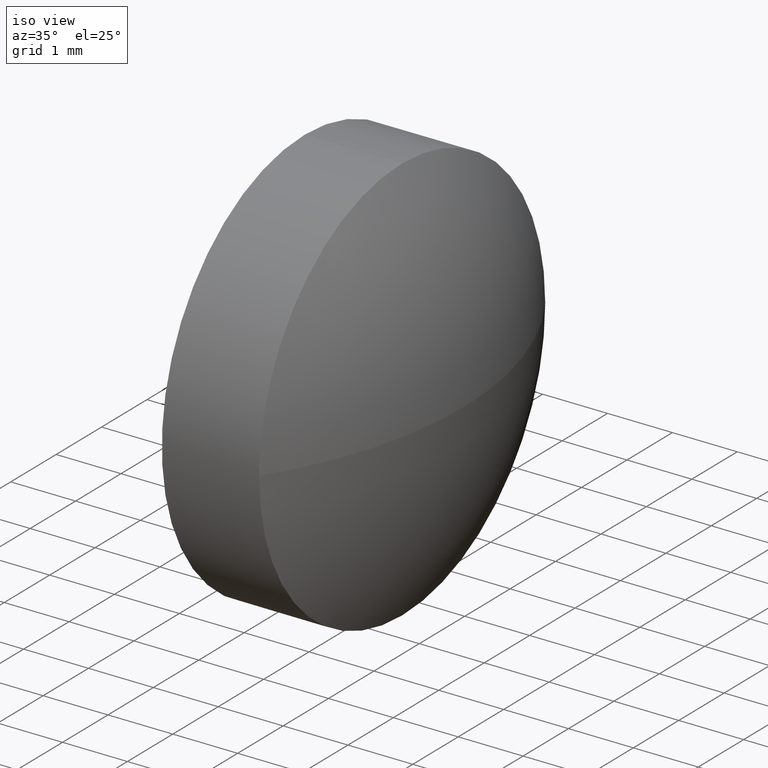
[diagram: clean part render]
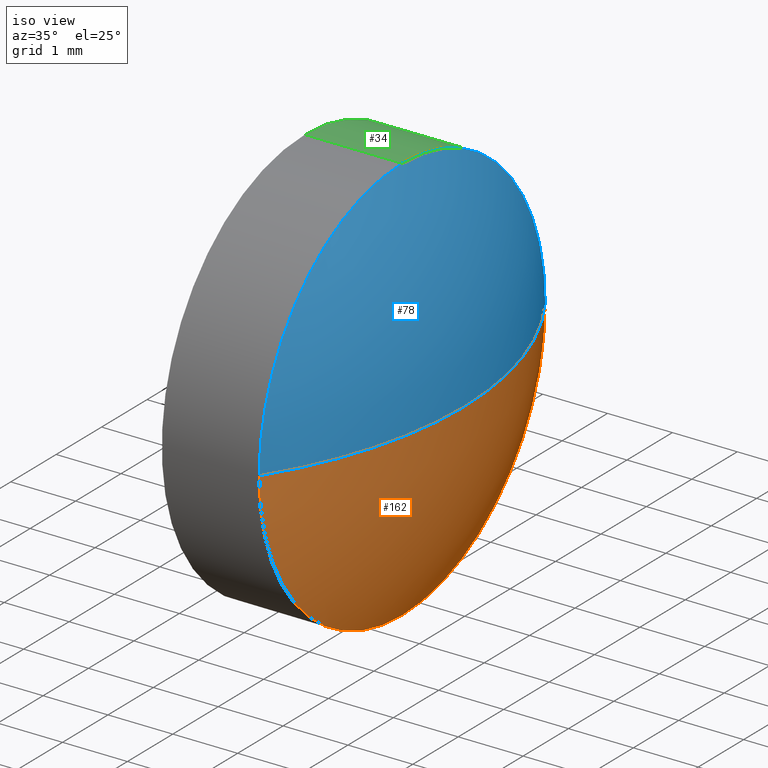
[diagram: same view with three faces highlighted in distinct colors, each labeled with its STEP entity id]
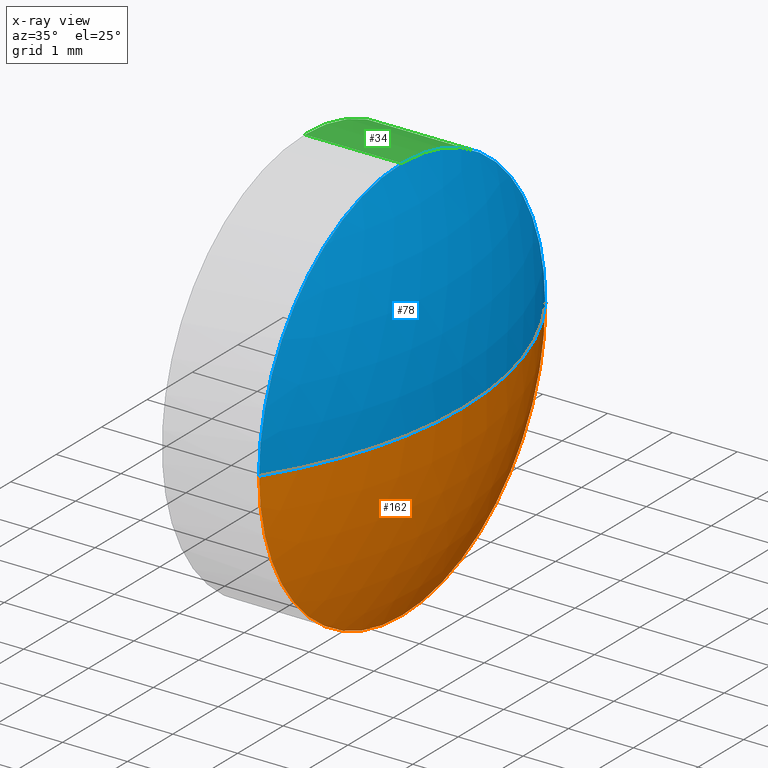
[diagram: x-ray of the same camera — body ghosted, the three highlighted faces saturated]
A machine part, iso view with three faces highlighted in distinct colors.
The next image is the same camera in x-ray (body ghosted, the three faces saturated) — at least one of them is partly hidden behind the body in this view.
Their STEP definitions:

[orange] entity #162 — the highlighted spherical surface has radius 5.7479 mm.
#2 = AXIS2_PLACEMENT_3D ( 'NONE', #59, #117, #74 ) ;
#4 = CARTESIAN_POINT ( 'NONE',  ( 419.5098370035601100, -21.67740160652397200, -3.149999999999999900 ) ) ;
#5 = VERTEX_POINT ( 'NONE', #22 ) ;
#8 = CARTESIAN_POINT ( 'NONE',  ( 419.5098370035601100, -21.67740160652397200, 0.0000000000000000000 ) ) ;
#12 = DIRECTION ( 'NONE',  ( 0.0000000000000000000, 0.0000000000000000000, 1.000000000000000000 ) ) ;
#13 = ORIENTED_EDGE ( 'NONE', *, *, #79, .T. ) ;
#19 = EDGE_CURVE ( 'NONE', #40, #5, #149, .T. ) ;
#20 = AXIS2_PLACEMENT_3D ( 'NONE', #43, #147, #115 ) ;
#21 = FACE_OUTER_BOUND ( 'NONE', #29, .T. ) ;
#22 = CARTESIAN_POINT ( 'NONE',  ( 419.5098370035601100, -18.52740160652397700, 0.0000000000000000000 ) ) ;
#29 = EDGE_LOOP ( 'NONE', ( #91, #13, #144, #128 ) ) ;
#40 = VERTEX_POINT ( 'NONE', #178 ) ;
#43 = CARTESIAN_POINT ( 'NONE',  ( 419.5098370035601100, -21.67740160652397200, 0.0000000000000000000 ) ) ;
#48 = CIRCLE ( 'NONE', #2, 5.747925531914894700 ) ;
#56 = DIRECTION ( 'NONE',  ( 1.000000000000000000, 0.0000000000000000000, 0.0000000000000000000 ) ) ;
#59 = CARTESIAN_POINT ( 'NONE',  ( 414.7019114716451900, -21.67740160652399000, 0.0000000000000000000 ) ) ;
#66 = SPHERICAL_SURFACE ( 'NONE', #121, 5.747925531914894700 ) ;
#67 = EDGE_CURVE ( 'NONE', #69, #97, #75, .T. ) ;
#69 = VERTEX_POINT ( 'NONE', #4 ) ;
#72 = DIRECTION ( 'NONE',  ( -1.000000000000000000, -0.0000000000000000000, -0.0000000000000000000 ) ) ;
#74 = DIRECTION ( 'NONE',  ( 0.0000000000000000000, 1.000000000000000000, 1.224646799147353500E-016 ) ) ;
#75 = CIRCLE ( 'NONE', #177, 3.149999999999999900 ) ;
#79 = EDGE_CURVE ( 'NONE', #40, #97, #48, .T. ) ;
#83 = DIRECTION ( 'NONE',  ( -0.0000000000000000000, 0.0000000000000000000, 1.000000000000000000 ) ) ;
#91 = ORIENTED_EDGE ( 'NONE', *, *, #19, .F. ) ;
#92 = AXIS2_PLACEMENT_3D ( 'NONE', #129, #83, #56 ) ;
#95 = EDGE_CURVE ( 'NONE', #5, #69, #168, .T. ) ;
#97 = VERTEX_POINT ( 'NONE', #155 ) ;
#102 = DIRECTION ( 'NONE',  ( 0.0000000000000000000, 1.000000000000000000, 0.0000000000000000000 ) ) ;
#115 = DIRECTION ( 'NONE',  ( 0.0000000000000000000, 0.0000000000000000000, 1.000000000000000000 ) ) ;
#117 = DIRECTION ( 'NONE',  ( 0.0000000000000000000, 1.224646799147353200E-016, -1.000000000000000000 ) ) ;
#121 = AXIS2_PLACEMENT_3D ( 'NONE', #183, #145, #102 ) ;
#128 = ORIENTED_EDGE ( 'NONE', *, *, #95, .F. ) ;
#129 = CARTESIAN_POINT ( 'NONE',  ( 414.7019114716451900, -21.67740160652399000, 0.0000000000000000000 ) ) ;
#144 = ORIENTED_EDGE ( 'NONE', *, *, #67, .F. ) ;
#145 = DIRECTION ( 'NONE',  ( -0.0000000000000000000, 0.0000000000000000000, -1.000000000000000000 ) ) ;
#147 = DIRECTION ( 'NONE',  ( -1.000000000000000000, -0.0000000000000000000, -0.0000000000000000000 ) ) ;
#149 = CIRCLE ( 'NONE', #92, 5.747925531914887600 ) ;
#155 = CARTESIAN_POINT ( 'NONE',  ( 419.5098370035601100, -24.82740160652398100, -3.857637417314154300E-016 ) ) ;
#162 = ADVANCED_FACE ( 'NONE', ( #21 ), #66, .T. ) ;
#168 = CIRCLE ( 'NONE', #20, 3.149999999999999900 ) ;
#177 = AXIS2_PLACEMENT_3D ( 'NONE', #8, #72, #12 ) ;
#178 = CARTESIAN_POINT ( 'NONE',  ( 420.4498370035601100, -21.67740160652399000, 0.0000000000000000000 ) ) ;
#183 = CARTESIAN_POINT ( 'NONE',  ( 414.7019114716451900, -21.67740160652399000, 0.0000000000000000000 ) ) ;

[blue] entity #78 — the highlighted spherical surface has radius 5.7479 mm.
#2 = AXIS2_PLACEMENT_3D ( 'NONE', #59, #117, #74 ) ;
#5 = VERTEX_POINT ( 'NONE', #22 ) ;
#7 = ORIENTED_EDGE ( 'NONE', *, *, #37, .F. ) ;
#17 = EDGE_LOOP ( 'NONE', ( #60, #161, #169, #7 ) ) ;
#19 = EDGE_CURVE ( 'NONE', #40, #5, #149, .T. ) ;
#22 = CARTESIAN_POINT ( 'NONE',  ( 419.5098370035601100, -18.52740160652397700, 0.0000000000000000000 ) ) ;
#30 = DIRECTION ( 'NONE',  ( 0.0000000000000000000, 0.0000000000000000000, 1.000000000000000000 ) ) ;
#37 = EDGE_CURVE ( 'NONE', #97, #107, #122, .T. ) ;
#40 = VERTEX_POINT ( 'NONE', #178 ) ;
#42 = CARTESIAN_POINT ( 'NONE',  ( 419.5098370035601100, -21.67740160652397200, 0.0000000000000000000 ) ) ;
#48 = CIRCLE ( 'NONE', #2, 5.747925531914894700 ) ;
#52 = EDGE_CURVE ( 'NONE', #107, #5, #176, .T. ) ;
#53 = DIRECTION ( 'NONE',  ( -1.000000000000000000, -0.0000000000000000000, -0.0000000000000000000 ) ) ;
#56 = DIRECTION ( 'NONE',  ( 1.000000000000000000, 0.0000000000000000000, 0.0000000000000000000 ) ) ;
#58 = DIRECTION ( 'NONE',  ( -0.0000000000000000000, 0.0000000000000000000, -1.000000000000000000 ) ) ;
#59 = CARTESIAN_POINT ( 'NONE',  ( 414.7019114716451900, -21.67740160652399000, 0.0000000000000000000 ) ) ;
#60 = ORIENTED_EDGE ( 'NONE', *, *, #79, .F. ) ;
#71 = DIRECTION ( 'NONE',  ( 0.0000000000000000000, 0.0000000000000000000, 1.000000000000000000 ) ) ;
#74 = DIRECTION ( 'NONE',  ( 0.0000000000000000000, 1.000000000000000000, 1.224646799147353500E-016 ) ) ;
#76 = DIRECTION ( 'NONE',  ( 0.0000000000000000000, 1.000000000000000000, 0.0000000000000000000 ) ) ;
#78 = ADVANCED_FACE ( 'NONE', ( #165 ), #105, .T. ) ;
#79 = EDGE_CURVE ( 'NONE', #40, #97, #48, .T. ) ;
#83 = DIRECTION ( 'NONE',  ( -0.0000000000000000000, 0.0000000000000000000, 1.000000000000000000 ) ) ;
#92 = AXIS2_PLACEMENT_3D ( 'NONE', #129, #83, #56 ) ;
#97 = VERTEX_POINT ( 'NONE', #155 ) ;
#105 = SPHERICAL_SURFACE ( 'NONE', #106, 5.747925531914894700 ) ;
#106 = AXIS2_PLACEMENT_3D ( 'NONE', #166, #58, #76 ) ;
#107 = VERTEX_POINT ( 'NONE', #135 ) ;
#117 = DIRECTION ( 'NONE',  ( 0.0000000000000000000, 1.224646799147353200E-016, -1.000000000000000000 ) ) ;
#122 = CIRCLE ( 'NONE', #137, 3.149999999999999900 ) ;
#127 = DIRECTION ( 'NONE',  ( -1.000000000000000000, -0.0000000000000000000, -0.0000000000000000000 ) ) ;
#129 = CARTESIAN_POINT ( 'NONE',  ( 414.7019114716451900, -21.67740160652399000, 0.0000000000000000000 ) ) ;
#135 = CARTESIAN_POINT ( 'NONE',  ( 419.5098370035601100, -21.67740160652397200, 3.149999999999999900 ) ) ;
#137 = AXIS2_PLACEMENT_3D ( 'NONE', #42, #53, #71 ) ;
#149 = CIRCLE ( 'NONE', #92, 5.747925531914887600 ) ;
#155 = CARTESIAN_POINT ( 'NONE',  ( 419.5098370035601100, -24.82740160652398100, -3.857637417314154300E-016 ) ) ;
#160 = AXIS2_PLACEMENT_3D ( 'NONE', #167, #127, #30 ) ;
#161 = ORIENTED_EDGE ( 'NONE', *, *, #19, .T. ) ;
#165 = FACE_OUTER_BOUND ( 'NONE', #17, .T. ) ;
#166 = CARTESIAN_POINT ( 'NONE',  ( 414.7019114716451900, -21.67740160652399000, 0.0000000000000000000 ) ) ;
#167 = CARTESIAN_POINT ( 'NONE',  ( 419.5098370035601100, -21.67740160652397200, 0.0000000000000000000 ) ) ;
#169 = ORIENTED_EDGE ( 'NONE', *, *, #52, .F. ) ;
#176 = CIRCLE ( 'NONE', #160, 3.149999999999999900 ) ;
#178 = CARTESIAN_POINT ( 'NONE',  ( 420.4498370035601100, -21.67740160652399000, 0.0000000000000000000 ) ) ;

[green] entity #34 — the highlighted cylindrical surface (partial cylindrical patch) has radius 3.15 mm, axis along (-1, -0, -0).
#4 = CARTESIAN_POINT ( 'NONE',  ( 419.5098370035601100, -21.67740160652397200, -3.149999999999999900 ) ) ;
#5 = VERTEX_POINT ( 'NONE', #22 ) ;
#6 = CARTESIAN_POINT ( 'NONE',  ( 418.0098370035601100, -21.67740160652397200, 3.149999999999999900 ) ) ;
#10 = CARTESIAN_POINT ( 'NONE',  ( 418.0098370035601100, -21.67740160652397200, -3.149999999999999900 ) ) ;
#14 = LINE ( 'NONE', #110, #163 ) ;
#18 = CIRCLE ( 'NONE', #146, 3.149999999999999900 ) ;
#20 = AXIS2_PLACEMENT_3D ( 'NONE', #43, #147, #115 ) ;
#22 = CARTESIAN_POINT ( 'NONE',  ( 419.5098370035601100, -18.52740160652397700, 0.0000000000000000000 ) ) ;
#30 = DIRECTION ( 'NONE',  ( 0.0000000000000000000, 0.0000000000000000000, 1.000000000000000000 ) ) ;
#34 = ADVANCED_FACE ( 'NONE', ( #118 ), #55, .T. ) ;
#35 = LINE ( 'NONE', #89, #63 ) ;
#36 = VERTEX_POINT ( 'NONE', #6 ) ;
#38 = CARTESIAN_POINT ( 'NONE',  ( 418.0098370035601100, -21.67740160652397200, 0.0000000000000000000 ) ) ;
#41 = CARTESIAN_POINT ( 'NONE',  ( 417.1491989148111100, -21.67740160652397200, 0.0000000000000000000 ) ) ;
#43 = CARTESIAN_POINT ( 'NONE',  ( 419.5098370035601100, -21.67740160652397200, 0.0000000000000000000 ) ) ;
#44 = DIRECTION ( 'NONE',  ( -1.000000000000000000, -0.0000000000000000000, -0.0000000000000000000 ) ) ;
#46 = EDGE_CURVE ( 'NONE', #107, #36, #14, .T. ) ;
#47 = ORIENTED_EDGE ( 'NONE', *, *, #95, .T. ) ;
#49 = EDGE_CURVE ( 'NONE', #36, #94, #18, .T. ) ;
#52 = EDGE_CURVE ( 'NONE', #107, #5, #176, .T. ) ;
#55 = CYLINDRICAL_SURFACE ( 'NONE', #150, 3.149999999999999900 ) ;
#62 = ORIENTED_EDGE ( 'NONE', *, *, #52, .T. ) ;
#63 = VECTOR ( 'NONE', #44, 1000.000000000000000 ) ;
#65 = ORIENTED_EDGE ( 'NONE', *, *, #130, .T. ) ;
#68 = DIRECTION ( 'NONE',  ( -1.000000000000000000, -0.0000000000000000000, -0.0000000000000000000 ) ) ;
#69 = VERTEX_POINT ( 'NONE', #4 ) ;
#81 = ORIENTED_EDGE ( 'NONE', *, *, #46, .F. ) ;
#89 = CARTESIAN_POINT ( 'NONE',  ( 417.1491989148111100, -21.67740160652397200, -3.149999999999999900 ) ) ;
#94 = VERTEX_POINT ( 'NONE', #10 ) ;
#95 = EDGE_CURVE ( 'NONE', #5, #69, #168, .T. ) ;
#98 = EDGE_LOOP ( 'NONE', ( #47, #65, #186, #81, #62 ) ) ;
#99 = DIRECTION ( 'NONE',  ( -1.000000000000000000, -0.0000000000000000000, -0.0000000000000000000 ) ) ;
#107 = VERTEX_POINT ( 'NONE', #135 ) ;
#110 = CARTESIAN_POINT ( 'NONE',  ( 417.1491989148111100, -21.67740160652397200, 3.149999999999999900 ) ) ;
#115 = DIRECTION ( 'NONE',  ( 0.0000000000000000000, 0.0000000000000000000, 1.000000000000000000 ) ) ;
#118 = FACE_OUTER_BOUND ( 'NONE', #98, .T. ) ;
#127 = DIRECTION ( 'NONE',  ( -1.000000000000000000, -0.0000000000000000000, -0.0000000000000000000 ) ) ;
#130 = EDGE_CURVE ( 'NONE', #69, #94, #35, .T. ) ;
#135 = CARTESIAN_POINT ( 'NONE',  ( 419.5098370035601100, -21.67740160652397200, 3.149999999999999900 ) ) ;
#141 = DIRECTION ( 'NONE',  ( 0.0000000000000000000, 0.0000000000000000000, 1.000000000000000000 ) ) ;
#146 = AXIS2_PLACEMENT_3D ( 'NONE', #38, #68, #175 ) ;
#147 = DIRECTION ( 'NONE',  ( -1.000000000000000000, -0.0000000000000000000, -0.0000000000000000000 ) ) ;
#150 = AXIS2_PLACEMENT_3D ( 'NONE', #41, #181, #141 ) ;
#160 = AXIS2_PLACEMENT_3D ( 'NONE', #167, #127, #30 ) ;
#163 = VECTOR ( 'NONE', #99, 1000.000000000000000 ) ;
#167 = CARTESIAN_POINT ( 'NONE',  ( 419.5098370035601100, -21.67740160652397200, 0.0000000000000000000 ) ) ;
#168 = CIRCLE ( 'NONE', #20, 3.149999999999999900 ) ;
#175 = DIRECTION ( 'NONE',  ( 0.0000000000000000000, 0.0000000000000000000, 1.000000000000000000 ) ) ;
#176 = CIRCLE ( 'NONE', #160, 3.149999999999999900 ) ;
#181 = DIRECTION ( 'NONE',  ( -1.000000000000000000, -0.0000000000000000000, -0.0000000000000000000 ) ) ;
#186 = ORIENTED_EDGE ( 'NONE', *, *, #49, .F. ) ;